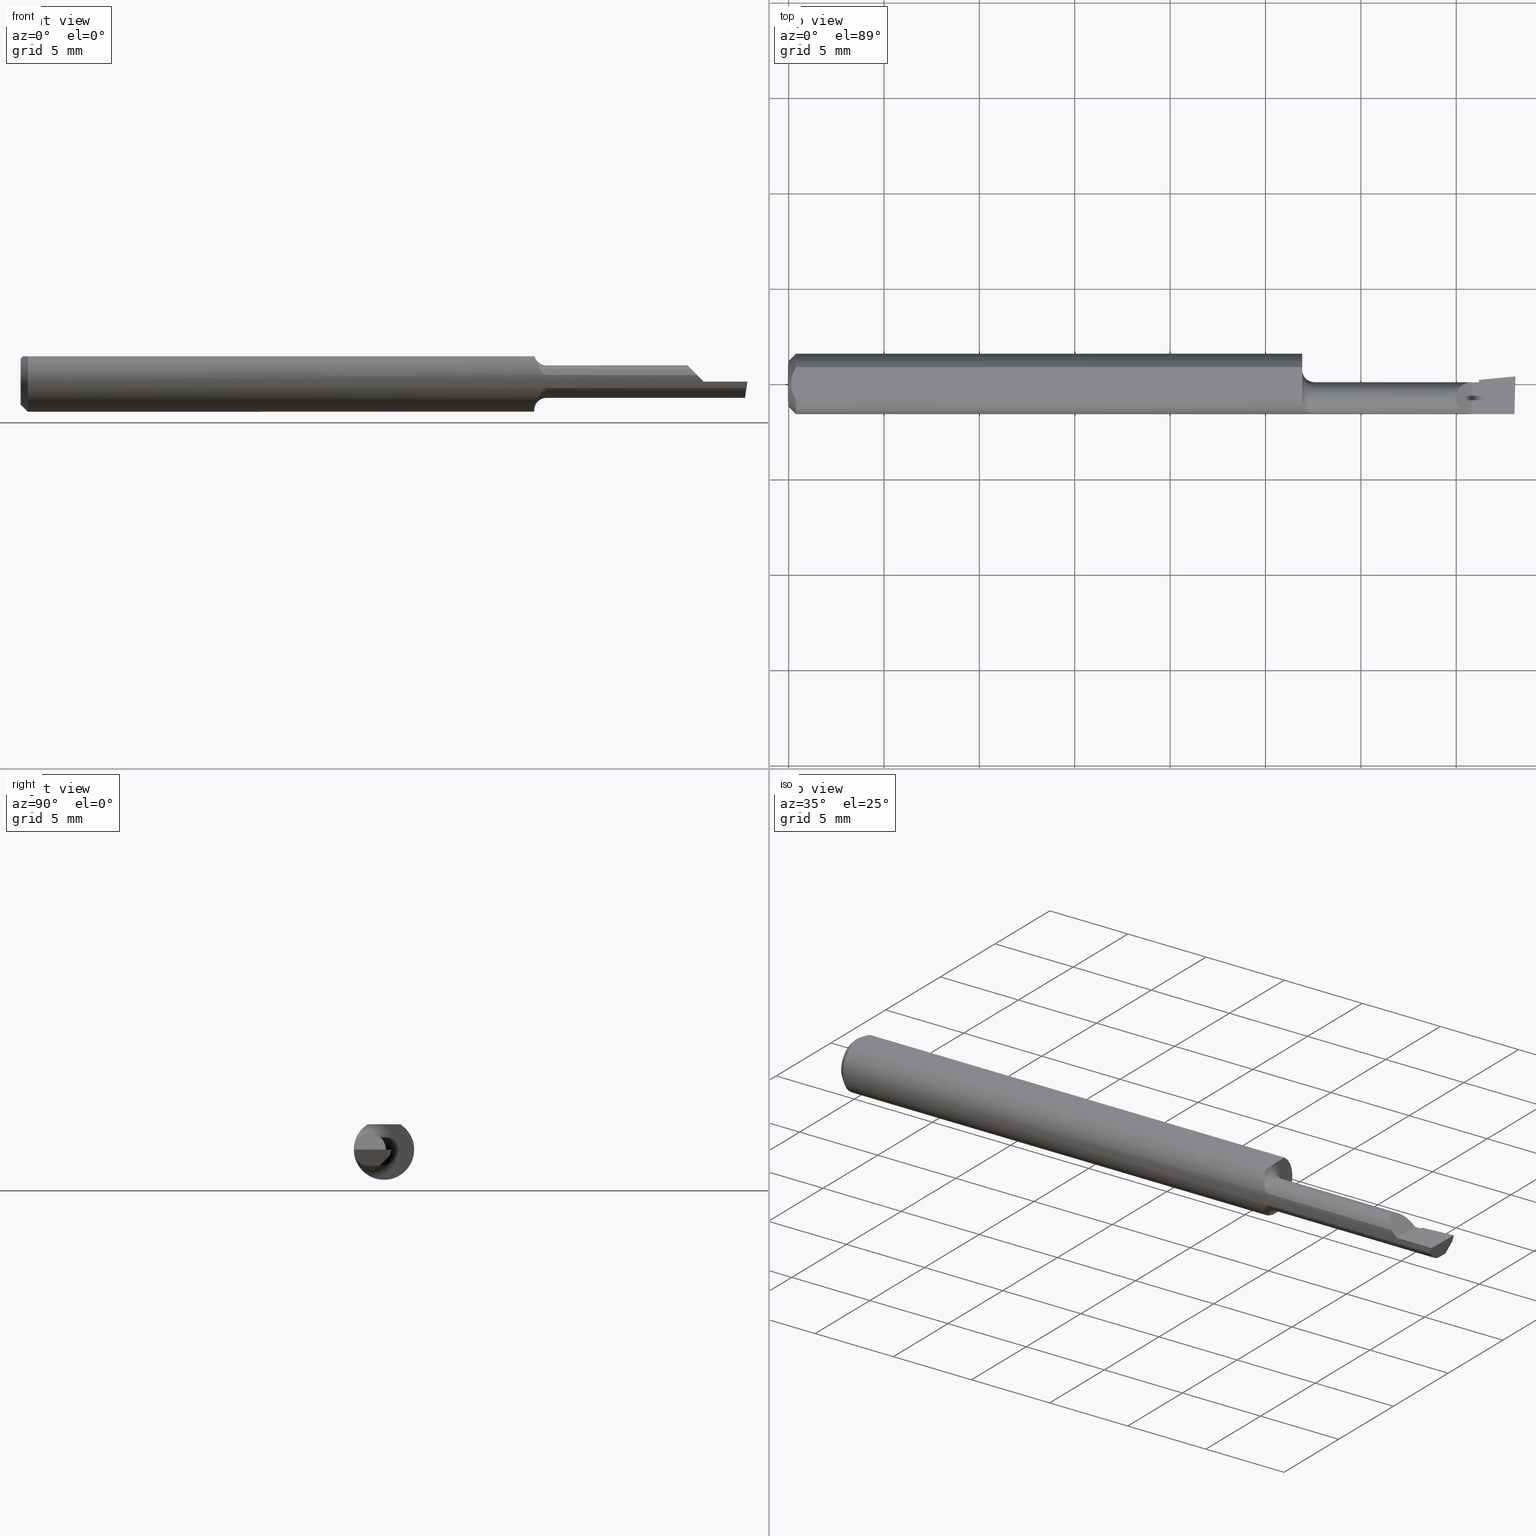
[diagram: canonical four-view strip — front | top / right | iso, engineering-drawing reading convention]
A machine part, canonical four-view strip (front | top / right | iso — engineering-drawing reading convention). The complete STEP part file that produces these views, byte-faithful:
ISO-10303-21;
HEADER;
FILE_DESCRIPTION (( 'STEP AP214' ),
    '1' );
FILE_NAME ('B080400.STEP',
    '2019-07-25T16:58:01',
    ( '' ),
    ( '' ),
    'SwSTEP 2.0',
    'SolidWorks 2018',
    '' );
FILE_SCHEMA (( 'AUTOMOTIVE_DESIGN' ));
ENDSEC;

DATA;
#1 = SURFACE_STYLE_USAGE ( .BOTH. , #260 ) ;
#2 =( CONVERSION_BASED_UNIT ( 'INCH', #304 ) LENGTH_UNIT ( ) NAMED_UNIT ( #510 ) );
#3 = EDGE_CURVE ( 'NONE', #322, #323, #242, .T. ) ;
#4 = ORIENTED_EDGE ( 'NONE', *, *, #451, .T. ) ;
#5 = APPLICATION_CONTEXT ( 'automotive_design' ) ;
#6 = DIRECTION ( 'NONE',  ( 1.000000000000000000, 0.0000000000000000000, 0.0000000000000000000 ) ) ;
#7 = LINE ( 'NONE', #345, #112 ) ;
#8 = CARTESIAN_POINT ( 'NONE',  ( 0.006057557792978140489, -0.01187252718384441616, 0.05234999999999998682 ) ) ;
#9 = ORIENTED_EDGE ( 'NONE', *, *, #198, .T. ) ;
#10 =( NAMED_UNIT ( * ) SI_UNIT ( $, .STERADIAN. ) SOLID_ANGLE_UNIT ( ) );
#11 = CARTESIAN_POINT ( 'NONE',  ( 1.060770118751884317, -0.03386738844373782253, 0.05235000000000000070 ) ) ;
#12 = CARTESIAN_POINT ( 'NONE',  ( 1.500000000000000222, -0.2500000000000000555, 0.0000000000000000000 ) ) ;
#13 = AXIS2_PLACEMENT_3D ( 'NONE', #529, #344, #86 ) ;
#14 = EDGE_LOOP ( 'NONE', ( #207, #69, #507, #281 ) ) ;
#15 = AXIS2_PLACEMENT_3D ( 'NONE', #221, #269, #394 ) ;
#16 = CYLINDRICAL_SURFACE ( 'NONE', #392, 0.03364999999999997854 ) ;
#17 = CARTESIAN_POINT ( 'NONE',  ( 1.062228576699353555, -0.04137438227418509945, 0.04686461655001718934 ) ) ;
#18 = ORIENTED_EDGE ( 'NONE', *, *, #421, .F. ) ;
#19 = ORIENTED_EDGE ( 'NONE', *, *, #198, .F. ) ;
#20 = PLANE ( 'NONE',  #146 ) ;
#21 = EDGE_CURVE ( 'NONE', #333, #439, #7, .T. ) ;
#22 = CARTESIAN_POINT ( 'NONE',  ( 1.496875516891821967, -0.06187149898566946665, -0.008911023878839243254 ) ) ;
#23 = CARTESIAN_POINT ( 'NONE',  ( 0.0000000000000000000, 0.0000000000000000000, 0.0000000000000000000 ) ) ;
#24 = B_SPLINE_CURVE_WITH_KNOTS ( 'NONE', 3,
 ( #500, #356, #321, #95, #406, #11 ),
 .UNSPECIFIED., .F., .F.,
 ( 4, 2, 4 ),
 ( 2.951825381264365662E-05, 0.0004145759864934283755, 0.0007996337191742130266 ),
 .UNSPECIFIED. ) ;
#25 = TOROIDAL_SURFACE ( 'NONE', #154, 0.05864999999999995217, 0.02500000000000000486 ) ;
#26 = VECTOR ( 'NONE', #48, 39.37007874015748854 ) ;
#27 = CARTESIAN_POINT ( 'NONE',  ( 1.425000000000000266, -0.02999999999999999889, -0.03365000000000000629 ) ) ;
#28 = ORIENTED_EDGE ( 'NONE', *, *, #433, .F. ) ;
#29 = CARTESIAN_POINT ( 'NONE',  ( 1.405531640871310994, -0.06235000000000000958, 0.004468359128689231886 ) ) ;
#30 = EDGE_CURVE ( 'NONE', #439, #323, #461, .T. ) ;
#31 = CARTESIAN_POINT ( 'NONE',  ( 1.060000000000000275, 0.03386738844375224156, 0.05235000000000000070 ) ) ;
#32 = ORIENTED_EDGE ( 'NONE', *, *, #401, .F. ) ;
#33 =( BOUNDED_CURVE ( )  B_SPLINE_CURVE ( 3, ( #119, #29, #253, #484 ),
 .UNSPECIFIED., .F., .F. ) 
 B_SPLINE_CURVE_WITH_KNOTS ( ( 4, 4 ),
 ( 4.712388980384689674, 4.926973479604667361 ),
 .UNSPECIFIED. ) 
 CURVE ( )  GEOMETRIC_REPRESENTATION_ITEM ( )  RATIONAL_B_SPLINE_CURVE ( ( 1.000000000000000000, 0.9961664706887894960, 0.9961664706887894960, 1.000000000000000000 ) ) 
 REPRESENTATION_ITEM ( '' )  );
#34 = CARTESIAN_POINT ( 'NONE',  ( 1.060000000000000275, -0.02246166666666676859, -0.05816352835373341662 ) ) ;
#35 = VECTOR ( 'NONE', #580, 39.37007874015748854 ) ;
#36 = CARTESIAN_POINT ( 'NONE',  ( 1.363008094618844535, 0.003649999999999974879, 0.04699190538115510102 ) ) ;
#37 = CARTESIAN_POINT ( 'NONE',  ( 1.496364186706980792, -0.06092000000000002968, -0.01327690099383122685 ) ) ;
#38 = MECHANICAL_DESIGN_GEOMETRIC_PRESENTATION_REPRESENTATION (  '', ( #210 ), #554 ) ;
#39 = CARTESIAN_POINT ( 'NONE',  ( 1.500000000000000222, 0.1123499999999999915, 0.05234999999999998682 ) ) ;
#40 = ORIENTED_EDGE ( 'NONE', *, *, #49, .T. ) ;
#41 = CARTESIAN_POINT ( 'NONE',  ( 1.422734132366857862, -0.006115384616088629516, -0.02372927357351955688 ) ) ;
#43 = CARTESIAN_POINT ( 'NONE',  ( 1.060459195061412618, -0.03294655339399239075, -0.05323881456264101253 ) ) ;
#42 = FACE_OUTER_BOUND ( 'NONE', #343, .T. ) ;
#44 = CARTESIAN_POINT ( 'NONE',  ( 1.396723099006168756, -0.06092000000000002968, 0.01327690099383124073 ) ) ;
#45 = VERTEX_POINT ( 'NONE', #581 ) ;
#46 = DIRECTION ( 'NONE',  ( 0.7071067811865395791, 8.659560562355030233E-17, 0.7071067811865554553 ) ) ;
#47 = APPLICATION_PROTOCOL_DEFINITION ( 'draft international standard', 'automotive_design', 1998, #542 ) ;
#48 = DIRECTION ( 'NONE',  ( 0.9953961983671800740, 0.09584575252021028391, -0.0000000000000000000 ) ) ;
#49 = EDGE_CURVE ( 'NONE', #413, #340, #466, .T. ) ;
#50 = ORIENTED_EDGE ( 'NONE', *, *, #377, .F. ) ;
#51 = ORIENTED_EDGE ( 'NONE', *, *, #337, .F. ) ;
#52 = PRODUCT_DEFINITION_FORMATION_WITH_SPECIFIED_SOURCE ( 'ANY', '', #378, .NOT_KNOWN. ) ;
#53 = AXIS2_PLACEMENT_3D ( 'NONE', #506, #190, #512 ) ;
#54 = VECTOR ( 'NONE', #473, 39.37007874015748143 ) ;
#55 = ORIENTED_EDGE ( 'NONE', *, *, #167, .F. ) ;
#56 = ORIENTED_EDGE ( 'NONE', *, *, #514, .F. ) ;
#57 = DIRECTION ( 'NONE',  ( 0.0000000000000000000, -0.6963153109074925462, -0.7177360153954948085 ) ) ;
#58 = ORIENTED_EDGE ( 'NONE', *, *, #415, .F. ) ;
#59 = CARTESIAN_POINT ( 'NONE',  ( 1.060770118751884317, -0.03386738844373782253, 0.05235000000000000070 ) ) ;
#60 = FACE_OUTER_BOUND ( 'NONE', #301, .T. ) ;
#61 = ORIENTED_EDGE ( 'NONE', *, *, #187, .T. ) ;
#62 = DIRECTION ( 'NONE',  ( 1.000000000000000000, -2.845674993400274571E-18, 0.0000000000000000000 ) ) ;
#63 = ADVANCED_FACE ( 'NONE', ( #72 ), #352, .F. ) ;
#64 = AXIS2_PLACEMENT_3D ( 'NONE', #68, #259, #339 ) ;
#65 = B_SPLINE_CURVE_WITH_KNOTS ( 'NONE', 3,
 ( #59, #559, #17, #326, #328, #153, #516, #468, #156, #556, #471, #239, #291, #244 ),
 .UNSPECIFIED., .F., .F.,
 ( 4, 2, 2, 2, 2, 2, 4 ),
 ( 3.657393739027581265E-07, 0.0003570510026825781660, 0.0007137362659912535167, 0.001070421529299928976, 0.001248764160954266922, 0.001337935476781435679, 0.001427106792608604435 ),
 .UNSPECIFIED. ) ;
#66 = CARTESIAN_POINT ( 'NONE',  ( 1.060770118751884317, -0.03386738844373782253, 0.05235000000000000070 ) ) ;
#67 = MANIFOLD_SOLID_BREP ( 'Extrude7', #419 ) ;
#68 = CARTESIAN_POINT ( 'NONE',  ( 0.0000000000000000000, 0.0000000000000000000, 0.0000000000000000000 ) ) ;
#69 = ORIENTED_EDGE ( 'NONE', *, *, #21, .T. ) ;
#70 = PRODUCT_RELATED_PRODUCT_CATEGORY ( 'part', '', ( #378 ) ) ;
#71 = DIRECTION ( 'NONE',  ( -0.9953961983671800740, -0.09584575252021027003, 1.242092384877204530E-16 ) ) ;
#72 = FACE_OUTER_BOUND ( 'NONE', #509, .T. ) ;
#73 = ORIENTED_EDGE ( 'NONE', *, *, #327, .F. ) ;
#74 = CARTESIAN_POINT ( 'NONE',  ( 0.01500000000000000465, 0.0000000000000000000, 0.0000000000000000000 ) ) ;
#75 = DIRECTION ( 'NONE',  ( 1.981487067771189051E-18, 0.6963153109074925462, 0.7177360153954948085 ) ) ;
#76 = CARTESIAN_POINT ( 'NONE',  ( 1.409999999999999920, -0.2500000000000000555, 1.102182119232617911E-17 ) ) ;
#77 = SHAPE_DEFINITION_REPRESENTATION ( #252, #230 ) ;
#78 = FACE_OUTER_BOUND ( 'NONE', #133, .T. ) ;
#79 = LINE ( 'NONE', #284, #393 ) ;
#80 = PLANE ( 'NONE',  #456 ) ;
#81 = ORIENTED_EDGE ( 'NONE', *, *, #445, .T. ) ;
#82 = UNCERTAINTY_MEASURE_WITH_UNIT (LENGTH_MEASURE( 1.000000000000000082E-05 ), #2, 'distance_accuracy_value', 'NONE');
#83 = DIRECTION ( 'NONE',  ( 0.0000000000000000000, -7.598598113218357399E-17, -1.000000000000000000 ) ) ;
#84 = CARTESIAN_POINT ( 'NONE',  ( 1.494942300338901298, -0.05544825464842374069, -0.02601981188465945019 ) ) ;
#85 = EDGE_CURVE ( 'NONE', #391, #123, #465, .T. ) ;
#86 = DIRECTION ( 'NONE',  ( 0.0000000000000000000, -1.000000000000000000, 0.0000000000000000000 ) ) ;
#87 = VECTOR ( 'NONE', #508, 39.37007874015748143 ) ;
#88 = ORIENTED_EDGE ( 'NONE', *, *, #150, .F. ) ;
#89 =( CONVERSION_BASED_UNIT ( 'INCH', #539 ) LENGTH_UNIT ( ) NAMED_UNIT ( #476 ) );
#90 = VERTEX_POINT ( 'NONE', #172 ) ;
#91 = CARTESIAN_POINT ( 'NONE',  ( 1.422808130611181054, -0.006922796484204020787, -0.02449010367251484854 ) ) ;
#92 = CARTESIAN_POINT ( 'NONE',  ( 1.063806486637389748, -0.04605636197897010342, -0.04237644601823783996 ) ) ;
#93 = SURFACE_SIDE_STYLE ('',( #350 ) ) ;
#94 = EDGE_CURVE ( 'NONE', #541, #306, #191, .T. ) ;
#95 = CARTESIAN_POINT ( 'NONE',  ( 1.060746490741564241, -0.02375524936241533991, 0.05234999999999998682 ) ) ;
#96 = FILL_AREA_STYLE ('',( #544 ) ) ;
#97 = CARTESIAN_POINT ( 'NONE',  ( 1.498507078272894200, 0.01201126422912052530, -0.01137894806700407747 ) ) ;
#98 = DIRECTION ( 'NONE',  ( 0.7071067811865395791, 0.0000000000000000000, -0.7071067811865554553 ) ) ;
#99 = PRESENTATION_STYLE_ASSIGNMENT (( #1 ) ) ;
#100 = ORIENTED_EDGE ( 'NONE', *, *, #204, .F. ) ;
#101 = DIRECTION ( 'NONE',  ( 0.0000000000000000000, 0.0000000000000000000, 1.000000000000000000 ) ) ;
#102 = CARTESIAN_POINT ( 'NONE',  ( 0.0000000000000000000, -0.03386738844375222768, 0.05234999999999997988 ) ) ;
#103 = ORIENTED_EDGE ( 'NONE', *, *, #232, .F. ) ;
#104 = ORIENTED_EDGE ( 'NONE', *, *, #505, .T. ) ;
#105 =( BOUNDED_CURVE ( )  B_SPLINE_CURVE ( 3, ( #292, #22, #517, #376 ),
 .UNSPECIFIED., .F., .T. ) 
 B_SPLINE_CURVE_WITH_KNOTS ( ( 4, 4 ),
 ( 1.146162383294269560, 1.360746882514247469 ),
 .UNSPECIFIED. ) 
 CURVE ( )  GEOMETRIC_REPRESENTATION_ITEM ( )  RATIONAL_B_SPLINE_CURVE ( ( 1.000000000000000000, 0.9961664706887894960, 0.9961664706887894960, 1.000000000000000000 ) ) 
 REPRESENTATION_ITEM ( '' )  );
#106 = ADVANCED_FACE ( 'NONE', ( #122 ), #398, .T. ) ;
#107 = AXIS2_PLACEMENT_3D ( 'NONE', #159, #200, #522 ) ;
#108 = ORIENTED_EDGE ( 'NONE', *, *, #364, .T. ) ;
#109 = CARTESIAN_POINT ( 'NONE',  ( 1.421744639163020185, 0.004121984496277298314, -0.01299999999999999767 ) ) ;
#110 = VECTOR ( 'NONE', #526, 39.37007874015748143 ) ;
#111 = DIRECTION ( 'NONE',  ( 0.0000000000000000000, 1.000000000000000000, 0.0000000000000000000 ) ) ;
#112 = VECTOR ( 'NONE', #218, 39.37007874015748854 ) ;
#113 = ORIENTED_EDGE ( 'NONE', *, *, #295, .T. ) ;
#114 = EDGE_CURVE ( 'NONE', #463, #413, #118, .T. ) ;
#115 = B_SPLINE_CURVE_WITH_KNOTS ( 'NONE', 3,
 ( #495, #183, #543, #138, #362, #407 ),
 .UNSPECIFIED., .F., .F.,
 ( 4, 2, 4 ),
 ( 0.003037199019464981685, 0.003488061124369676216, 0.003938923229274370746 ),
 .UNSPECIFIED. ) ;
#116 = EDGE_LOOP ( 'NONE', ( #577, #189 ) ) ;
#117 = CONICAL_SURFACE ( 'NONE', #372, 0.06235000000000000264, 0.7853981633974594923 ) ;
#118 = CIRCLE ( 'NONE', #127, 0.06235000000000000264 ) ;
#119 = CARTESIAN_POINT ( 'NONE',  ( 1.409999999999999920, -0.06235000000000005121, 1.102182119232617911E-17 ) ) ;
#120 = ORIENTED_EDGE ( 'NONE', *, *, #349, .T. ) ;
#121 = EDGE_CURVE ( 'NONE', #329, #541, #335, .T. ) ;
#122 = FACE_OUTER_BOUND ( 'NONE', #324, .T. ) ;
#123 = VERTEX_POINT ( 'NONE', #34 ) ;
#124 =( LENGTH_UNIT ( ) NAMED_UNIT ( * ) SI_UNIT ( $, .METRE. ) );
#125 = ORIENTED_EDGE ( 'NONE', *, *, #514, .T. ) ;
#126 = CARTESIAN_POINT ( 'NONE',  ( 1.060000000000000275, -0.003555718954753289696, 0.05235000000000000070 ) ) ;
#127 = AXIS2_PLACEMENT_3D ( 'NONE', #142, #139, #101 ) ;
#128 = CARTESIAN_POINT ( 'NONE',  ( 1.425000000000000266, 0.01742832138518450244, 0.0000000000000000000 ) ) ;
#129 = CARTESIAN_POINT ( 'NONE',  ( 1.423453955186838593, -0.005345927311154015198, -0.02292882422404280210 ) ) ;
#130 = PRODUCT_CONTEXT ( 'NONE', #542, 'mechanical' ) ;
#131 =( NAMED_UNIT ( * ) SI_UNIT ( $, .STERADIAN. ) SOLID_ANGLE_UNIT ( ) );
#132 = DIRECTION ( 'NONE',  ( 0.0000000000000000000, -0.6963153109074925462, -0.7177360153954948085 ) ) ;
#133 = EDGE_LOOP ( 'NONE', ( #214, #432, #56, #558, #504, #108, #238, #288 ) ) ;
#134 = CARTESIAN_POINT ( 'NONE',  ( 1.059999999999999831, -0.02789725500421540855, -0.05606440581369923071 ) ) ;
#135 = FACE_OUTER_BOUND ( 'NONE', #243, .T. ) ;
#136 = VERTEX_POINT ( 'NONE', #502 ) ;
#137 = ORIENTED_EDGE ( 'NONE', *, *, #553, .F. ) ;
#138 = CARTESIAN_POINT ( 'NONE',  ( 0.009669996313769784607, 0.02323004575534281385, 0.05234999999999998682 ) ) ;
#139 = DIRECTION ( 'NONE',  ( -1.000000000000000000, -0.0000000000000000000, -0.0000000000000000000 ) ) ;
#140 = VERTEX_POINT ( 'NONE', #179 ) ;
#142 = CARTESIAN_POINT ( 'NONE',  ( 0.01500000000000000465, 0.0000000000000000000, 0.0000000000000000000 ) ) ;
#141 = CIRCLE ( 'NONE', #296, 0.04734999999999965625 ) ;
#143 = EDGE_CURVE ( 'NONE', #273, #333, #571, .T. ) ;
#144 = DIRECTION ( 'NONE',  ( -1.000000000000000000, 0.0000000000000000000, 1.224646799147351728E-16 ) ) ;
#145 = ADVANCED_FACE ( 'NONE', ( #562 ), #233, .F. ) ;
#146 = AXIS2_PLACEMENT_3D ( 'NONE', #109, #192, #57 ) ;
#147 = EDGE_LOOP ( 'NONE', ( #28, #285, #546, #271, #202, #58 ) ) ;
#148 = UNCERTAINTY_MEASURE_WITH_UNIT (LENGTH_MEASURE( 1.000000000000000082E-05 ), #222, 'distance_accuracy_value', 'NONE');
#149 = LINE ( 'NONE', #315, #26 ) ;
#150 = EDGE_CURVE ( 'NONE', #340, #312, #481, .T. ) ;
#151 = ORIENTED_EDGE ( 'NONE', *, *, #570, .T. ) ;
#152 = ORIENTED_EDGE ( 'NONE', *, *, #415, .T. ) ;
#153 = CARTESIAN_POINT ( 'NONE',  ( 1.069932821425532365, -0.05508260153816094823, 0.02952874505345454842 ) ) ;
#154 = AXIS2_PLACEMENT_3D ( 'NONE', #212, #574, #538 ) ;
#155 = CARTESIAN_POINT ( 'NONE',  ( 1.425000000000000266, -0.01559826430798809220, -0.03365000000000000629 ) ) ;
#156 = CARTESIAN_POINT ( 'NONE',  ( 1.077368540304127764, -0.05962881332384153271, 0.01830066387367074859 ) ) ;
#157 = ORIENTED_EDGE ( 'NONE', *, *, #94, .F. ) ;
#158 = CARTESIAN_POINT ( 'NONE',  ( 1.425000000000000266, -0.2500000000000000555, 9.184850993605122553E-18 ) ) ;
#159 = CARTESIAN_POINT ( 'NONE',  ( 1.421363700328992286, 0.008078185550903239573, 0.0000000000000000000 ) ) ;
#160 = EDGE_CURVE ( 'NONE', #511, #312, #79, .T. ) ;
#161 = ORIENTED_EDGE ( 'NONE', *, *, #178, .T. ) ;
#162 = DIRECTION ( 'NONE',  ( 0.0000000000000000000, 1.000000000000000000, 2.134256245050205331E-17 ) ) ;
#163 = LINE ( 'NONE', #102, #54 ) ;
#164 = EDGE_LOOP ( 'NONE', ( #454, #223, #552, #181, #528, #103, #9, #217, #351, #278, #100, #368 ) ) ;
#165 = CARTESIAN_POINT ( 'NONE',  ( 1.425000000000000266, 0.01723212120761677055, 0.0001903446179552509407 ) ) ;
#166 = ORIENTED_EDGE ( 'NONE', *, *, #85, .T. ) ;
#167 = EDGE_CURVE ( 'NONE', #186, #140, #149, .T. ) ;
#168 = ORIENTED_EDGE ( 'NONE', *, *, #358, .F. ) ;
#169 = CARTESIAN_POINT ( 'NONE',  ( 2.249639673992780117E-32, -0.06234999999999999570, 1.836970198721026976E-16 ) ) ;
#170 = LINE ( 'NONE', #245, #459 ) ;
#171 = ORIENTED_EDGE ( 'NONE', *, *, #204, .T. ) ;
#172 = CARTESIAN_POINT ( 'NONE',  ( 1.422808130611181054, -0.006922796484204020787, -0.02449010367251484854 ) ) ;
#173 = CARTESIAN_POINT ( 'NONE',  ( 1.494671495890090407, -0.02999999999999999889, -0.03365000000000000629 ) ) ;
#174 = VERTEX_POINT ( 'NONE', #361 ) ;
#175 = CARTESIAN_POINT ( 'NONE',  ( 1.078839404641495303, -0.06006884725234332839, -0.01674793665629174116 ) ) ;
#176 = EDGE_LOOP ( 'NONE', ( #157, #51, #152 ) ) ;
#177 = DIRECTION ( 'NONE',  ( 0.0000000000000000000, 0.0000000000000000000, 1.000000000000000000 ) ) ;
#178 = EDGE_CURVE ( 'NONE', #45, #140, #234, .T. ) ;
#179 = CARTESIAN_POINT ( 'NONE',  ( 1.498294395726379236, 0.01149288769551535735, -0.01300000000000000461 ) ) ;
#180 = DIRECTION ( 'NONE',  ( -2.845674993400274571E-18, -1.000000000000000000, 7.598598113218357399E-17 ) ) ;
#181 = ORIENTED_EDGE ( 'NONE', *, *, #337, .T. ) ;
#182 = CARTESIAN_POINT ( 'NONE',  ( 0.009678036133109307534, -0.02325481837211496039, 0.05235000000000000070 ) ) ;
#183 = CARTESIAN_POINT ( 'NONE',  ( 0.004999999999999268051, 0.005945714695019511074, 0.05235000000000000070 ) ) ;
#184 = EDGE_LOOP ( 'NONE', ( #525, #268, #416, #485 ) ) ;
#185 = CARTESIAN_POINT ( 'NONE',  ( 0.004999999999989931769, 7.898418181085889318E-16, 0.05235000000000000070 ) ) ;
#186 = VERTEX_POINT ( 'NONE', #231 ) ;
#187 = EDGE_CURVE ( 'NONE', #448, #254, #24, .T. ) ;
#188 = VECTOR ( 'NONE', #408, 39.37007874015748143 ) ;
#189 = ORIENTED_EDGE ( 'NONE', *, *, #505, .F. ) ;
#190 = DIRECTION ( 'NONE',  ( -1.214679925209547374E-34, -2.134256245050205023E-17, 1.000000000000000000 ) ) ;
#191 =( BOUNDED_CURVE ( )  B_SPLINE_CURVE ( 3, ( #579, #308, #36, #264 ),
 .UNSPECIFIED., .F., .F. ) 
 B_SPLINE_CURVE_WITH_KNOTS ( ( 4, 4 ),
 ( 5.117976542370898940, 7.853981633974482790 ),
 .UNSPECIFIED. ) 
 CURVE ( )  GEOMETRIC_REPRESENTATION_ITEM ( )  RATIONAL_B_SPLINE_CURVE ( ( 1.000000000000000000, 0.4676044288551156614, 0.4676044288551156614, 1.000000000000000000 ) ) 
 REPRESENTATION_ITEM ( '' )  );
#192 = DIRECTION ( 'NONE',  ( 0.06894566448119621160, -0.7160281025913034503, 0.6946583704589934793 ) ) ;
#193 = DIRECTION ( 'NONE',  ( 1.000000000000000000, 0.0000000000000000000, 0.0000000000000000000 ) ) ;
#194 = VECTOR ( 'NONE', #491, 39.37007874015748143 ) ;
#195 = ADVANCED_FACE ( 'NONE', ( #280 ), #410, .F. ) ;
#196 = EDGE_LOOP ( 'NONE', ( #567, #396, #151, #40, #499 ) ) ;
#197 = DIMENSIONAL_EXPONENTS ( 1.000000000000000000, 0.0000000000000000000, 0.0000000000000000000, 0.0000000000000000000, 0.0000000000000000000, 0.0000000000000000000, 0.0000000000000000000 ) ;
#198 = EDGE_CURVE ( 'NONE', #254, #340, #163, .T. ) ;
#199 = PLANE ( 'NONE',  #220 ) ;
#200 = DIRECTION ( 'NONE',  ( 0.09165774897393341725, -0.9519021185660617723, 0.2923717047227292753 ) ) ;
#201 = VERTEX_POINT ( 'NONE', #283 ) ;
#202 = ORIENTED_EDGE ( 'NONE', *, *, #364, .F. ) ;
#203 = CARTESIAN_POINT ( 'NONE',  ( 0.01500000000000000465, 0.0000000000000000000, -0.06235000000000000264 ) ) ;
#204 = EDGE_CURVE ( 'NONE', #123, #404, #438, .T. ) ;
#205 = B_SPLINE_CURVE_WITH_KNOTS ( 'NONE', 3,
 ( #399, #311, #41, #353 ),
 .UNSPECIFIED., .F., .F.,
 ( 4, 4 ),
 ( 0.0000000000000000000, 1.000000000000000000 ),
 .UNSPECIFIED. ) ;
#206 = CIRCLE ( 'NONE', #325, 0.05864999999999995217 ) ;
#207 = ORIENTED_EDGE ( 'NONE', *, *, #143, .T. ) ;
#208 = CARTESIAN_POINT ( 'NONE',  ( 0.01500000000000000465, 0.03386738844375223462, 0.05234999999999997988 ) ) ;
#209 = ORIENTED_EDGE ( 'NONE', *, *, #114, .T. ) ;
#210 = STYLED_ITEM ( 'NONE', ( #545 ), #230 ) ;
#211 = DIRECTION ( 'NONE',  ( 0.0000000000000000000, 0.0000000000000000000, 1.000000000000000000 ) ) ;
#212 = CARTESIAN_POINT ( 'NONE',  ( 1.085000000000000187, -0.02999999999999999195, 0.0000000000000000000 ) ) ;
#213 = AXIS2_PLACEMENT_3D ( 'NONE', #23, #371, #248 ) ;
#214 = ORIENTED_EDGE ( 'NONE', *, *, #445, .F. ) ;
#215 = CARTESIAN_POINT ( 'NONE',  ( 1.076050480108695639, -0.05911543623058085339, -0.01994584841871081468 ) ) ;
#216 = FACE_OUTER_BOUND ( 'NONE', #116, .T. ) ;
#217 = ORIENTED_EDGE ( 'NONE', *, *, #49, .F. ) ;
#218 = DIRECTION ( 'NONE',  ( -0.02617694830794567787, -0.9996573249755552615, -2.144436937150365041E-17 ) ) ;
#219 = CARTESIAN_POINT ( 'NONE',  ( 1.494308349198229635, -0.04386801266094339513, -0.03364999999999997160 ) ) ;
#220 = AXIS2_PLACEMENT_3D ( 'NONE', #341, #336, #250 ) ;
#221 = CARTESIAN_POINT ( 'NONE',  ( 0.01500000000000000465, 0.0000000000000000000, 0.0000000000000000000 ) ) ;
#222 =( CONVERSION_BASED_UNIT ( 'INCH', #310 ) LENGTH_UNIT ( ) NAMED_UNIT ( #197 ) );
#223 = ORIENTED_EDGE ( 'NONE', *, *, #286, .T. ) ;
#224 =( NAMED_UNIT ( * ) SI_UNIT ( $, .STERADIAN. ) SOLID_ANGLE_UNIT ( ) );
#225 = MECHANICAL_DESIGN_GEOMETRIC_PRESENTATION_REPRESENTATION (  '', ( #492 ), #560 ) ;
#226 = LINE ( 'NONE', #565, #110 ) ;
#227 = CARTESIAN_POINT ( 'NONE',  ( 1.409999999999999920, -0.06235000000000005121, 1.102182119232617911E-17 ) ) ;
#228 = SURFACE_STYLE_FILL_AREA ( #480 ) ;
#229 = ORIENTED_EDGE ( 'NONE', *, *, #3, .F. ) ;
#230 = ADVANCED_BREP_SHAPE_REPRESENTATION ( 'B080400', ( #67, #478 ), #338 ) ;
#231 = CARTESIAN_POINT ( 'NONE',  ( 1.425000000000000266, 0.004435440092809596509, -0.01299999999999999593 ) ) ;
#232 = EDGE_CURVE ( 'NONE', #254, #329, #65, .T. ) ;
#233 = PLANE ( 'NONE',  #549 ) ;
#234 = LINE ( 'NONE', #97, #188 ) ;
#235 = LINE ( 'NONE', #274, #431 ) ;
#236 = VECTOR ( 'NONE', #547, 39.37007874015748854 ) ;
#237 = ADVANCED_FACE ( 'NONE', ( #446 ), #20, .F. ) ;
#238 = ORIENTED_EDGE ( 'NONE', *, *, #3, .T. ) ;
#239 = CARTESIAN_POINT ( 'NONE',  ( 1.082669914596958050, -0.06082078945086089039, 0.01373977049058535890 ) ) ;
#240 = ADVANCED_FACE ( 'NONE', ( #425 ), #430, .T. ) ;
#241 = DIRECTION ( 'NONE',  ( -0.1053106618242659331, -0.6976485211320150315, -0.7086580314005108683 ) ) ;
#242 = CIRCLE ( 'NONE', #300, 0.03364999999999999936 ) ;
#243 = EDGE_LOOP ( 'NONE', ( #81, #551, #73, #564, #382, #298 ) ) ;
#244 = CARTESIAN_POINT ( 'NONE',  ( 1.085000000000000187, -0.06092000000000011989, 0.01327690099383098572 ) ) ;
#245 = CARTESIAN_POINT ( 'NONE',  ( 1.255000000000000115, -0.06092000000000002968, -0.01327690099383122685 ) ) ;
#246 = ADVANCED_FACE ( 'NONE', ( #42 ), #330, .F. ) ;
#247 = ORIENTED_EDGE ( 'NONE', *, *, #389, .F. ) ;
#248 = DIRECTION ( 'NONE',  ( 0.0000000000000000000, 0.0000000000000000000, -1.000000000000000000 ) ) ;
#249 = COLOUR_RGB ( '',0.7529411764705882248, 0.7529411764705882248, 0.7529411764705882248 ) ;
#250 = DIRECTION ( 'NONE',  ( 0.1219104985253313955, 0.0000000000000000000, 0.9925410975618615961 ) ) ;
#251 = CARTESIAN_POINT ( 'NONE',  ( 0.0000000000000000000, 0.0000000000000000000, 0.0000000000000000000 ) ) ;
#252 = PRODUCT_DEFINITION_SHAPE ( 'NONE', 'NONE',  #365 ) ;
#253 = CARTESIAN_POINT ( 'NONE',  ( 1.401088976121160901, -0.06187149898566946665, 0.008911023878839208559 ) ) ;
#254 = VERTEX_POINT ( 'NONE', #66 ) ;
#255 = FACE_OUTER_BOUND ( 'NONE', #196, .T. ) ;
#256 = COLOUR_RGB ( '',0.7529411764705882248, 0.7529411764705882248, 0.7529411764705882248 ) ;
#257 = VERTEX_POINT ( 'NONE', #370 ) ;
#258 = EDGE_LOOP ( 'NONE', ( #532, #104 ) ) ;
#259 = DIRECTION ( 'NONE',  ( -1.000000000000000000, -0.0000000000000000000, -0.0000000000000000000 ) ) ;
#260 = SURFACE_SIDE_STYLE ('',( #228 ) ) ;
#261 = CARTESIAN_POINT ( 'NONE',  ( 0.0000000000000000000, 6.717187693324806899E-18, 0.04734999999999965625 ) ) ;
#262 = CARTESIAN_POINT ( 'NONE',  ( 0.0000000000000000000, 0.0000000000000000000, 0.0000000000000000000 ) ) ;
#263 = LINE ( 'NONE', #165, #578 ) ;
#264 = CARTESIAN_POINT ( 'NONE',  ( 1.409999999999999920, 0.003649999999999939317, 1.102182119232617911E-17 ) ) ;
#265 = EDGE_CURVE ( 'NONE', #136, #391, #170, .T. ) ;
#266 =( NAMED_UNIT ( * ) PLANE_ANGLE_UNIT ( ) SI_UNIT ( $, .RADIAN. ) );
#267 = DIRECTION ( 'NONE',  ( -2.845674993400274571E-18, -1.000000000000000000, 0.0000000000000000000 ) ) ;
#268 = ORIENTED_EDGE ( 'NONE', *, *, #327, .T. ) ;
#269 = DIRECTION ( 'NONE',  ( -1.000000000000000000, -0.0000000000000000000, -0.0000000000000000000 ) ) ;
#270 =( LENGTH_UNIT ( ) NAMED_UNIT ( * ) SI_UNIT ( $, .METRE. ) );
#271 = ORIENTED_EDGE ( 'NONE', *, *, #295, .F. ) ;
#272 = CARTESIAN_POINT ( 'NONE',  ( 1.500000000000000222, -0.02999999999999999889, -0.03365000000000000629 ) ) ;
#273 = VERTEX_POINT ( 'NONE', #155 ) ;
#274 = CARTESIAN_POINT ( 'NONE',  ( 1.060000000000000275, 0.1123499999999999915, 0.05234999999999998682 ) ) ;
#275 = CARTESIAN_POINT ( 'NONE',  ( 0.01216137397042175820, -0.02864146636719541034, 0.05235000000000000070 ) ) ;
#276 =( NAMED_UNIT ( * ) PLANE_ANGLE_UNIT ( ) SI_UNIT ( $, .RADIAN. ) );
#277 = DIRECTION ( 'NONE',  ( 1.000000000000000000, -2.845674993400274571E-18, 0.0000000000000000000 ) ) ;
#278 = ORIENTED_EDGE ( 'NONE', *, *, #421, .T. ) ;
#279 = CARTESIAN_POINT ( 'NONE',  ( 1.255000000000000115, -0.06092000000000002968, 0.01327690099383122685 ) ) ;
#280 = FACE_OUTER_BOUND ( 'NONE', #14, .T. ) ;
#281 = ORIENTED_EDGE ( 'NONE', *, *, #358, .T. ) ;
#282 = AXIS2_PLACEMENT_3D ( 'NONE', #520, #332, #426 ) ;
#283 = CARTESIAN_POINT ( 'NONE',  ( 0.0000000000000000000, 0.0000000000000000000, -0.04734999999999965625 ) ) ;
#284 = CARTESIAN_POINT ( 'NONE',  ( 0.01500000000000000465, 7.635672792683746671E-18, 0.06235000000000000264 ) ) ;
#285 = ORIENTED_EDGE ( 'NONE', *, *, #477, .T. ) ;
#286 = EDGE_CURVE ( 'NONE', #136, #174, #105, .T. ) ;
#287 = ADVANCED_FACE ( 'NONE', ( #60 ), #374, .T. ) ;
#288 = ORIENTED_EDGE ( 'NONE', *, *, #30, .F. ) ;
#289 = ORIENTED_EDGE ( 'NONE', *, *, #536, .F. ) ;
#290 = CARTESIAN_POINT ( 'NONE',  ( 1.425000000000000266, -0.02999999999999999889, -0.03365000000000000629 ) ) ;
#291 = CARTESIAN_POINT ( 'NONE',  ( 1.083800894846882246, -0.06092000000060116688, 0.01327690099107451532 ) ) ;
#292 = CARTESIAN_POINT ( 'NONE',  ( 1.496364186706980792, -0.06092000000000002968, -0.01327690099383122685 ) ) ;
#293 = DIRECTION ( 'NONE',  ( -1.000000000000000000, 2.845674993400274571E-18, -0.0000000000000000000 ) ) ;
#294 =( BOUNDED_CURVE ( )  B_SPLINE_CURVE ( 3, ( #395, #129, #493, #91 ),
 .UNSPECIFIED., .F., .F. ) 
 B_SPLINE_CURVE_WITH_KNOTS ( ( 4, 4 ),
 ( 3.087527693676584750, 3.186434404596884651 ),
 .UNSPECIFIED. ) 
 CURVE ( )  GEOMETRIC_REPRESENTATION_ITEM ( )  RATIONAL_B_SPLINE_CURVE ( ( 1.000000000000000000, 0.9991849546734631327, 0.9991849546734631327, 1.000000000000000000 ) ) 
 REPRESENTATION_ITEM ( '' )  );
#295 = EDGE_CURVE ( 'NONE', #322, #483, #402, .T. ) ;
#296 = AXIS2_PLACEMENT_3D ( 'NONE', #262, #535, #211 ) ;
#297 = CARTESIAN_POINT ( 'NONE',  ( 1.085000000000000187, -0.06092000000000011989, 0.01327690099383098572 ) ) ;
#298 = ORIENTED_EDGE ( 'NONE', *, *, #286, .F. ) ;
#299 = CARTESIAN_POINT ( 'NONE',  ( 9.575696352794166315E-20, 0.003649999999999977481, 1.836970198721026976E-16 ) ) ;
#300 = AXIS2_PLACEMENT_3D ( 'NONE', #537, #490, #540 ) ;
#301 = EDGE_LOOP ( 'NONE', ( #171, #387, #524 ) ) ;
#302 = CARTESIAN_POINT ( 'NONE',  ( 1.085000000000000187, -0.06092000000000008519, -0.01327690099383104991 ) ) ;
#303 = CARTESIAN_POINT ( 'NONE',  ( 1.421744639163020185, 0.004121984496277298314, -0.01299999999999999767 ) ) ;
#304 = LENGTH_MEASURE_WITH_UNIT ( LENGTH_MEASURE( 0.02539999999999999897 ), #270 );
#305 = UNCERTAINTY_MEASURE_WITH_UNIT (LENGTH_MEASURE( 1.000000000000000082E-05 ), #89, 'distance_accuracy_value', 'NONE');
#306 = VERTEX_POINT ( 'NONE', #474 ) ;
#307 = PRODUCT_DEFINITION_CONTEXT ( 'detailed design', #5, 'design' ) ;
#308 = CARTESIAN_POINT ( 'NONE',  ( 1.353543612694569021, -0.04237893387051779037, 0.05645638730543054568 ) ) ;
#309 = CARTESIAN_POINT ( 'NONE',  ( 1.494671495890090407, -0.02999999999999999889, -0.03365000000000000629 ) ) ;
#310 = LENGTH_MEASURE_WITH_UNIT ( LENGTH_MEASURE( 0.02539999999999999897 ), #498 );
#311 = CARTESIAN_POINT ( 'NONE',  ( 1.422660134122533337, -0.005345630279323702709, -0.02292848294241266877 ) ) ;
#312 = VERTEX_POINT ( 'NONE', #513 ) ;
#313 = CARTESIAN_POINT ( 'NONE',  ( 1.083515031386486527, -0.06092000000000005050, -0.01327690099383105685 ) ) ;
#314 = DIRECTION ( 'NONE',  ( 8.355118786175290872E-19, 0.2936076258024050145, 0.9559260233253800143 ) ) ;
#315 = CARTESIAN_POINT ( 'NONE',  ( 1.421744639163020185, 0.004121984496277298314, -0.01299999999999999767 ) ) ;
#316 = CARTESIAN_POINT ( 'NONE',  ( 0.0000000000000000000, 0.0000000000000000000, 0.0000000000000000000 ) ) ;
#317 = ORIENTED_EDGE ( 'NONE', *, *, #553, .T. ) ;
#318 = AXIS2_PLACEMENT_3D ( 'NONE', #420, #193, #424 ) ;
#319 = CARTESIAN_POINT ( 'NONE',  ( 0.01500000000000185213, -0.03386738844380016850, 0.05235000000000000070 ) ) ;
#320 =( BOUNDED_CURVE ( )  B_SPLINE_CURVE ( 3, ( #37, #84, #219, #173 ),
 .UNSPECIFIED., .F., .T. ) 
 B_SPLINE_CURVE_WITH_KNOTS ( ( 4, 4 ),
 ( 5.328025986651549140, 6.493234751460234655 ),
 .UNSPECIFIED. ) 
 CURVE ( )  GEOMETRIC_REPRESENTATION_ITEM ( )  RATIONAL_B_SPLINE_CURVE ( ( 1.000000000000000000, 0.8900217005663144665, 0.8900217005663144665, 1.000000000000000000 ) ) 
 REPRESENTATION_ITEM ( '' )  );
#321 = CARTESIAN_POINT ( 'NONE',  ( 1.060303160474311390, -0.01365768250280466507, 0.05235000000000000070 ) ) ;
#322 = VERTEX_POINT ( 'NONE', #555 ) ;
#323 = VERTEX_POINT ( 'NONE', #290 ) ;
#324 = EDGE_LOOP ( 'NONE', ( #247, #168, #229, #113, #137 ) ) ;
#325 = AXIS2_PLACEMENT_3D ( 'NONE', #381, #342, #434 ) ;
#326 = CARTESIAN_POINT ( 'NONE',  ( 1.064663954570610249, -0.04772651244230442791, 0.04037711979630428938 ) ) ;
#327 = EDGE_CURVE ( 'NONE', #140, #333, #412, .T. ) ;
#328 = CARTESIAN_POINT ( 'NONE',  ( 1.066221614559560882, -0.05050373301684462496, 0.03681593035639608991 ) ) ;
#329 = VERTEX_POINT ( 'NONE', #297 ) ;
#330 = PLANE ( 'NONE',  #213 ) ;
#331 = ADVANCED_FACE ( 'NONE', ( #531 ), #503, .T. ) ;
#332 = DIRECTION ( 'NONE',  ( 1.000000000000000000, -2.845674993400274571E-18, 0.0000000000000000000 ) ) ;
#333 = VERTEX_POINT ( 'NONE', #479 ) ;
#334 = AXIS2_PLACEMENT_3D ( 'NONE', #39, #83, #534 ) ;
#335 = LINE ( 'NONE', #279, #563 ) ;
#336 = DIRECTION ( 'NONE',  ( -0.9922060308645400672, 0.02598182930476513816, 0.1218693434051957708 ) ) ;
#337 = EDGE_CURVE ( 'NONE', #572, #541, #33, .T. ) ;
#338 =( GEOMETRIC_REPRESENTATION_CONTEXT ( 3 ) GLOBAL_UNCERTAINTY_ASSIGNED_CONTEXT ( ( #148 ) ) GLOBAL_UNIT_ASSIGNED_CONTEXT ( ( #222, #455, #224 ) ) REPRESENTATION_CONTEXT ( 'NONE', 'WORKASPACE' ) );
#339 = DIRECTION ( 'NONE',  ( 0.0000000000000000000, 0.0000000000000000000, 1.000000000000000000 ) ) ;
#340 = VERTEX_POINT ( 'NONE', #388 ) ;
#341 = CARTESIAN_POINT ( 'NONE',  ( 1.492670969023479621, -0.06014768907414845545, -0.04351009013361928357 ) ) ;
#342 = DIRECTION ( 'NONE',  ( -1.000000000000000000, 2.845674993400274571E-18, -0.0000000000000000000 ) ) ;
#343 = EDGE_LOOP ( 'NONE', ( #4, #120 ) ) ;
#344 = DIRECTION ( 'NONE',  ( -1.000000000000000000, 2.845674993400274571E-18, -0.0000000000000000000 ) ) ;
#345 = CARTESIAN_POINT ( 'NONE',  ( 1.494675147154936878, -0.02986056382103132595, -0.03365000000000000629 ) ) ;
#346 = CARTESIAN_POINT ( 'NONE',  ( 1.425000000000000266, 0.008428321385185622017, 1.835460370743176819E-16 ) ) ;
#347 = CARTESIAN_POINT ( 'NONE',  ( 0.0000000000000000000, -0.02999999999999999542, 0.0000000000000000000 ) ) ;
#348 = FACE_OUTER_BOUND ( 'NONE', #366, .T. ) ;
#349 = EDGE_CURVE ( 'NONE', #511, #201, #384, .T. ) ;
#350 = SURFACE_STYLE_FILL_AREA ( #96 ) ;
#351 = ORIENTED_EDGE ( 'NONE', *, *, #114, .F. ) ;
#352 = PLANE ( 'NONE',  #334 ) ;
#353 = CARTESIAN_POINT ( 'NONE',  ( 1.422808130611181054, -0.006922796484204020787, -0.02449010367251484854 ) ) ;
#354 = CARTESIAN_POINT ( 'NONE',  ( 1.074448669179930871, -0.05829317251375062264, -0.02226264029831841532 ) ) ;
#356 = CARTESIAN_POINT ( 'NONE',  ( 1.060000000000000275, -0.008611455327202423640, 0.05235000000000000070 ) ) ;
#355 = VECTOR ( 'NONE', #71, 39.37007874015748854 ) ;
#357 = CARTESIAN_POINT ( 'NONE',  ( 0.01500000000000000465, 0.0000000000000000000, -0.06235000000000000264 ) ) ;
#358 = EDGE_CURVE ( 'NONE', #323, #273, #375, .T. ) ;
#359 = ORIENTED_EDGE ( 'NONE', *, *, #570, .F. ) ;
#360 = ORIENTED_EDGE ( 'NONE', *, *, #187, .F. ) ;
#361 = CARTESIAN_POINT ( 'NONE',  ( 1.497957498117606479, -0.06235000000000005121, 1.791754701920804801E-19 ) ) ;
#362 = CARTESIAN_POINT ( 'NONE',  ( 0.01218518006020415795, 0.02868529347538067639, 0.05235000000000000070 ) ) ;
#363 = CIRCLE ( 'NONE', #13, 0.03364999999999995772 ) ;
#364 = EDGE_CURVE ( 'NONE', #306, #322, #550, .T. ) ;
#365 = PRODUCT_DEFINITION ( 'UNKNOWN', '', #52, #307 ) ;
#366 = EDGE_LOOP ( 'NONE', ( #50, #161, #55, #317 ) ) ;
#367 = ADVANCED_FACE ( 'NONE', ( #255 ), #117, .T. ) ;
#368 = ORIENTED_EDGE ( 'NONE', *, *, #85, .F. ) ;
#369 = ADVANCED_FACE ( 'NONE', ( #348 ), #429, .F. ) ;
#370 = CARTESIAN_POINT ( 'NONE',  ( 1.422586135878206814, -0.004617293032567721701, -0.02209164292227844967 ) ) ;
#371 = DIRECTION ( 'NONE',  ( 1.000000000000000000, 0.0000000000000000000, 0.0000000000000000000 ) ) ;
#372 = AXIS2_PLACEMENT_3D ( 'NONE', #74, #568, #380 ) ;
#373 = ORIENTED_EDGE ( 'NONE', *, *, #232, .T. ) ;
#374 = PLANE ( 'NONE',  #282 ) ;
#375 = LINE ( 'NONE', #27, #475 ) ;
#376 = CARTESIAN_POINT ( 'NONE',  ( 1.497957498117606479, -0.06235000000000005121, 1.791754701920804801E-19 ) ) ;
#377 = EDGE_CURVE ( 'NONE', #45, #483, #482, .T. ) ;
#378 = PRODUCT ( 'B080400', 'B080400', '', ( #130 ) ) ;
#379 = AXIS2_PLACEMENT_3D ( 'NONE', #437, #447, #444 ) ;
#380 = DIRECTION ( 'NONE',  ( 0.0000000000000000000, 0.0000000000000000000, -1.000000000000000000 ) ) ;
#381 = CARTESIAN_POINT ( 'NONE',  ( 1.060000000000000275, -0.02999999999999999889, 0.0000000000000000000 ) ) ;
#382 = ORIENTED_EDGE ( 'NONE', *, *, #477, .F. ) ;
#383 = CARTESIAN_POINT ( 'NONE',  ( 1.474655795189113938, 0.01320963064143659479, 3.103769929858641008E-18 ) ) ;
#384 = CIRCLE ( 'NONE', #440, 0.04734999999999965625 ) ;
#385 = VECTOR ( 'NONE', #98, 39.37007874015748143 ) ;
#386 = EDGE_LOOP ( 'NONE', ( #409, #443, #523, #209, #359 ) ) ;
#387 = ORIENTED_EDGE ( 'NONE', *, *, #561, .T. ) ;
#388 = CARTESIAN_POINT ( 'NONE',  ( 0.01500000000000185213, -0.03386738844380016850, 0.05235000000000000070 ) ) ;
#389 = EDGE_CURVE ( 'NONE', #273, #186, #263, .T. ) ;
#390 = PLANE ( 'NONE',  #379 ) ;
#391 = VERTEX_POINT ( 'NONE', #302 ) ;
#392 = AXIS2_PLACEMENT_3D ( 'NONE', #347, #397, #267 ) ;
#394 = DIRECTION ( 'NONE',  ( 0.0000000000000000000, 0.0000000000000000000, 1.000000000000000000 ) ) ;
#393 = VECTOR ( 'NONE', #46, 39.37007874015748143 ) ;
#395 = CARTESIAN_POINT ( 'NONE',  ( 1.422586135878206814, -0.004617293032567721701, -0.02209164292227844967 ) ) ;
#396 = ORIENTED_EDGE ( 'NONE', *, *, #451, .F. ) ;
#397 = DIRECTION ( 'NONE',  ( -1.000000000000000000, 2.845674993400274571E-18, -0.0000000000000000000 ) ) ;
#398 = PLANE ( 'NONE',  #418 ) ;
#399 = CARTESIAN_POINT ( 'NONE',  ( 1.422586135878206814, -0.004617293032567721701, -0.02209164292227844967 ) ) ;
#400 = CARTESIAN_POINT ( 'NONE',  ( 1.079828686665877058, -0.06034170405075480609, -0.01572293840682431956 ) ) ;
#401 = EDGE_CURVE ( 'NONE', #448, #123, #206, .T. ) ;
#402 = LINE ( 'NONE', #158, #87 ) ;
#403 = APPLICATION_PROTOCOL_DEFINITION ( 'draft international standard', 'automotive_design', 1998, #5 ) ;
#404 = VERTEX_POINT ( 'NONE', #31 ) ;
#405 = SURFACE_STYLE_USAGE ( .BOTH. , #93 ) ;
#406 = CARTESIAN_POINT ( 'NONE',  ( 1.060864870788666314, -0.02880649294741972899, 0.05235000000000000070 ) ) ;
#407 = CARTESIAN_POINT ( 'NONE',  ( 0.01500000000000000465, 0.03386738844375223462, 0.05234999999999997988 ) ) ;
#408 = DIRECTION ( 'NONE',  ( -0.1240019227990024481, -0.3022330132596669494, -0.9451342385281216174 ) ) ;
#409 = ORIENTED_EDGE ( 'NONE', *, *, #349, .F. ) ;
#410 = PLANE ( 'NONE',  #53 ) ;
#411 = PRESENTATION_LAYER_ASSIGNMENT (  '', '', ( #492 ) ) ;
#412 = LINE ( 'NONE', #464, #519 ) ;
#413 = VERTEX_POINT ( 'NONE', #203 ) ;
#414 = DIRECTION ( 'NONE',  ( -1.224646799147351728E-16, 0.0000000000000000000, -1.000000000000000000 ) ) ;
#415 = EDGE_CURVE ( 'NONE', #572, #306, #569, .T. ) ;
#416 = ORIENTED_EDGE ( 'NONE', *, *, #143, .F. ) ;
#417 = ADVANCED_FACE ( 'NONE', ( #135 ), #199, .F. ) ;
#418 = AXIS2_PLACEMENT_3D ( 'NONE', #128, #497, #442 ) ;
#419 = CLOSED_SHELL ( 'NONE', ( #240, #331, #63, #145, #427, #246, #367, #462, #287, #106, #515, #195, #237, #369, #422, #417 ) ) ;
#420 = CARTESIAN_POINT ( 'NONE',  ( 0.01500000000000000465, 0.0000000000000000000, 0.0000000000000000000 ) ) ;
#421 = EDGE_CURVE ( 'NONE', #463, #404, #226, .T. ) ;
#422 = ADVANCED_FACE ( 'NONE', ( #216 ), #80, .F. ) ;
#423 = LINE ( 'NONE', #487, #35 ) ;
#424 = DIRECTION ( 'NONE',  ( 0.0000000000000000000, 0.0000000000000000000, -1.000000000000000000 ) ) ;
#425 = FACE_OUTER_BOUND ( 'NONE', #386, .T. ) ;
#426 = DIRECTION ( 'NONE',  ( 2.845674993400274571E-18, 1.000000000000000000, 0.0000000000000000000 ) ) ;
#427 = ADVANCED_FACE ( 'NONE', ( #557 ), #390, .F. ) ;
#428 = EDGE_LOOP ( 'NONE', ( #166, #32, #61, #373, #125 ) ) ;
#429 = PLANE ( 'NONE',  #107 ) ;
#430 = CONICAL_SURFACE ( 'NONE', #318, 0.06235000000000000264, 0.7853981633974594923 ) ;
#431 = VECTOR ( 'NONE', #180, 39.37007874015748143 ) ;
#432 = ORIENTED_EDGE ( 'NONE', *, *, #265, .T. ) ;
#433 = EDGE_CURVE ( 'NONE', #174, #572, #457, .T. ) ;
#434 = DIRECTION ( 'NONE',  ( 0.0000000000000000000, -1.000000000000000000, 0.0000000000000000000 ) ) ;
#435 = FILL_AREA_STYLE_COLOUR ( '', #249 ) ;
#436 = DIRECTION ( 'NONE',  ( -1.000000000000000000, -0.0000000000000000000, -0.0000000000000000000 ) ) ;
#437 = CARTESIAN_POINT ( 'NONE',  ( 1.409999999999999920, -0.2500000000000000555, 1.102182119232617911E-17 ) ) ;
#438 = CIRCLE ( 'NONE', #470, 0.06235000000000000264 ) ;
#439 = VERTEX_POINT ( 'NONE', #309 ) ;
#440 = AXIS2_PLACEMENT_3D ( 'NONE', #251, #436, #521 ) ;
#441 = CARTESIAN_POINT ( 'NONE',  ( 1.082160137918816600, -0.06077026469959422028, -0.01397522694752832348 ) ) ;
#442 = DIRECTION ( 'NONE',  ( -2.845674993400274571E-18, -1.000000000000000000, 0.0000000000000000000 ) ) ;
#443 = ORIENTED_EDGE ( 'NONE', *, *, #160, .T. ) ;
#444 = DIRECTION ( 'NONE',  ( -0.7071067811865516806, 0.0000000000000000000, 0.7071067811865431318 ) ) ;
#445 = EDGE_CURVE ( 'NONE', #136, #439, #320, .T. ) ;
#446 = FACE_OUTER_BOUND ( 'NONE', #184, .T. ) ;
#447 = DIRECTION ( 'NONE',  ( -0.7071067811865432429, 0.0000000000000000000, -0.7071067811865517916 ) ) ;
#448 = VERTEX_POINT ( 'NONE', #126 ) ;
#449 = CARTESIAN_POINT ( 'NONE',  ( 1.070064578917327980, -0.05535262368619134343, -0.02912723828542086030 ) ) ;
#450 = CARTESIAN_POINT ( 'NONE',  ( 1.060000000000000275, -0.02246166666666676859, -0.05816352835373341662 ) ) ;
#451 = EDGE_CURVE ( 'NONE', #201, #511, #141, .T. ) ;
#452 = VECTOR ( 'NONE', #566, 39.37007874015748143 ) ;
#453 = VECTOR ( 'NONE', #533, 39.37007874015748143 ) ;
#454 = ORIENTED_EDGE ( 'NONE', *, *, #265, .F. ) ;
#455 =( NAMED_UNIT ( * ) PLANE_ANGLE_UNIT ( ) SI_UNIT ( $, .RADIAN. ) );
#456 = AXIS2_PLACEMENT_3D ( 'NONE', #303, #573, #132 ) ;
#458 = CARTESIAN_POINT ( 'NONE',  ( 0.004999999999998879473, -0.005957634400466955450, 0.05235000000000000070 ) ) ;
#457 = LINE ( 'NONE', #169, #194 ) ;
#459 = VECTOR ( 'NONE', #293, 39.37007874015748143 ) ;
#460 = LINE ( 'NONE', #357, #385 ) ;
#461 = LINE ( 'NONE', #272, #453 ) ;
#462 = ADVANCED_FACE ( 'NONE', ( #496 ), #25, .F. ) ;
#463 = VERTEX_POINT ( 'NONE', #208 ) ;
#464 = CARTESIAN_POINT ( 'NONE',  ( 1.496903894257689771, 0.002281272494749539501, -0.02235698263016666631 ) ) ;
#465 = B_SPLINE_CURVE_WITH_KNOTS ( 'NONE', 3,
 ( #576, #313, #441, #400, #175, #215, #354, #449, #488, #92, #494, #43, #134, #450 ),
 .UNSPECIFIED., .F., .F.,
 ( 4, 2, 2, 2, 2, 2, 4 ),
 ( 1.965909345844155589E-07, 0.0001114396223726250092, 0.0002226826538106656077, 0.0004451687166867400827, 0.0008901408424388890326, 0.001335112968191038470, 0.001780085093943187908 ),
 .UNSPECIFIED. ) ;
#466 = CIRCLE ( 'NONE', #15, 0.06235000000000000264 ) ;
#467 = ORIENTED_EDGE ( 'NONE', *, *, #561, .F. ) ;
#468 = CARTESIAN_POINT ( 'NONE',  ( 1.075983073081282049, -0.05904190537839694441, 0.02013745427411970865 ) ) ;
#469 = CARTESIAN_POINT ( 'NONE',  ( 1.060000000000000275, 0.0000000000000000000, 0.0000000000000000000 ) ) ;
#470 = AXIS2_PLACEMENT_3D ( 'NONE', #469, #62, #111 ) ;
#471 = CARTESIAN_POINT ( 'NONE',  ( 1.080680476387446909, -0.06051938329563266716, 0.01501179429902400712 ) ) ;
#472 = VECTOR ( 'NONE', #314, 39.37007874015748854 ) ;
#473 = DIRECTION ( 'NONE',  ( -1.000000000000000000, -0.0000000000000000000, -0.0000000000000000000 ) ) ;
#474 = CARTESIAN_POINT ( 'NONE',  ( 1.409999999999999920, 0.003649999999999939317, 1.102182119232617911E-17 ) ) ;
#475 = VECTOR ( 'NONE', #162, 39.37007874015748143 ) ;
#476 = DIMENSIONAL_EXPONENTS ( 1.000000000000000000, 0.0000000000000000000, 0.0000000000000000000, 0.0000000000000000000, 0.0000000000000000000, 0.0000000000000000000, 0.0000000000000000000 ) ;
#477 = EDGE_CURVE ( 'NONE', #174, #45, #423, .T. ) ;
#478 = AXIS2_PLACEMENT_3D ( 'NONE', #316, #177, #6 ) ;
#479 = CARTESIAN_POINT ( 'NONE',  ( 1.495225686884720906, -0.008836299758840961138, -0.03365000000000000629 ) ) ;
#480 = FILL_AREA_STYLE ('',( #435 ) ) ;
#481 = B_SPLINE_CURVE_WITH_KNOTS ( 'NONE', 3,
 ( #319, #275, #182, #8, #458, #185 ),
 .UNSPECIFIED., .F., .F.,
 ( 4, 2, 4 ),
 ( 0.002133667072902290657, 0.002585433046183636171, 0.003037199019464981685 ),
 .UNSPECIFIED. ) ;
#482 = LINE ( 'NONE', #383, #355 ) ;
#483 = VERTEX_POINT ( 'NONE', #346 ) ;
#484 = CARTESIAN_POINT ( 'NONE',  ( 1.396723099006168756, -0.06092000000000002968, 0.01327690099383124073 ) ) ;
#485 = ORIENTED_EDGE ( 'NONE', *, *, #389, .T. ) ;
#486 = EDGE_CURVE ( 'NONE', #257, #90, #294, .T. ) ;
#487 = CARTESIAN_POINT ( 'NONE',  ( 1.493048476612020448, -0.2498179679537755049, 8.513160866287305864E-19 ) ) ;
#488 = CARTESIAN_POINT ( 'NONE',  ( 1.067651921643428814, -0.05268295501176721574, -0.03378546887498617979 ) ) ;
#489 = LINE ( 'NONE', #501, #472 ) ;
#490 = DIRECTION ( 'NONE',  ( -1.000000000000000000, 2.845674993400274571E-18, -0.0000000000000000000 ) ) ;
#491 = DIRECTION ( 'NONE',  ( -1.000000000000000000, -0.0000000000000000000, -0.0000000000000000000 ) ) ;
#492 = STYLED_ITEM ( 'NONE', ( #99 ), #67 ) ;
#493 = CARTESIAN_POINT ( 'NONE',  ( 1.423528013792283442, -0.006115055335901491834, -0.02372896329039483540 ) ) ;
#494 = CARTESIAN_POINT ( 'NONE',  ( 1.062355689262080460, -0.04203237437577737184, -0.04640179157007805200 ) ) ;
#495 = CARTESIAN_POINT ( 'NONE',  ( 0.004999999999989931769, 7.898418181085889318E-16, 0.05235000000000000070 ) ) ;
#497 = DIRECTION ( 'NONE',  ( -1.000000000000000000, 2.845674993400274571E-18, 0.0000000000000000000 ) ) ;
#496 = FACE_OUTER_BOUND ( 'NONE', #428, .T. ) ;
#498 =( LENGTH_UNIT ( ) NAMED_UNIT ( * ) SI_UNIT ( $, .METRE. ) );
#499 = ORIENTED_EDGE ( 'NONE', *, *, #150, .T. ) ;
#500 = CARTESIAN_POINT ( 'NONE',  ( 1.060000000000000275, -0.003555718954753289696, 0.05235000000000000070 ) ) ;
#501 = CARTESIAN_POINT ( 'NONE',  ( 1.425000000000000266, 0.009204170326549401468, 0.002526004531361394218 ) ) ;
#502 = CARTESIAN_POINT ( 'NONE',  ( 1.496364186706980792, -0.06092000000000002968, -0.01327690099383122685 ) ) ;
#503 = CYLINDRICAL_SURFACE ( 'NONE', #64, 0.06235000000000000264 ) ;
#504 = ORIENTED_EDGE ( 'NONE', *, *, #94, .T. ) ;
#505 = EDGE_CURVE ( 'NONE', #257, #90, #205, .T. ) ;
#506 = CARTESIAN_POINT ( 'NONE',  ( 1.500000000000000222, -0.02999999999999999889, -0.03365000000000000629 ) ) ;
#507 = ORIENTED_EDGE ( 'NONE', *, *, #30, .T. ) ;
#508 = DIRECTION ( 'NONE',  ( 2.845674993400274571E-18, 1.000000000000000000, -3.484946772081307763E-34 ) ) ;
#509 = EDGE_LOOP ( 'NONE', ( #360, #467, #18, #289, #88, #19 ) ) ;
#510 = DIMENSIONAL_EXPONENTS ( 1.000000000000000000, 0.0000000000000000000, 0.0000000000000000000, 0.0000000000000000000, 0.0000000000000000000, 0.0000000000000000000, 0.0000000000000000000 ) ;
#511 = VERTEX_POINT ( 'NONE', #261 ) ;
#512 = DIRECTION ( 'NONE',  ( 0.0000000000000000000, -1.000000000000000000, -2.134256245050205023E-17 ) ) ;
#513 = CARTESIAN_POINT ( 'NONE',  ( 0.004999999999989931769, 7.898418181085889318E-16, 0.05235000000000000070 ) ) ;
#514 = EDGE_CURVE ( 'NONE', #329, #391, #363, .T. ) ;
#515 = ADVANCED_FACE ( 'NONE', ( #78, #530 ), #16, .T. ) ;
#516 = CARTESIAN_POINT ( 'NONE',  ( 1.072102256738829862, -0.05694092632992445863, 0.02571027090688613251 ) ) ;
#517 = CARTESIAN_POINT ( 'NONE',  ( 1.497408664532471567, -0.06235000000000000958, -0.004468359128689266581 ) ) ;
#518 = VECTOR ( 'NONE', #527, 39.37007874015748143 ) ;
#519 = VECTOR ( 'NONE', #241, 39.37007874015748143 ) ;
#520 = CARTESIAN_POINT ( 'NONE',  ( 1.060000000000000275, 0.02864999999999996369, 0.0000000000000000000 ) ) ;
#521 = DIRECTION ( 'NONE',  ( 0.0000000000000000000, 0.0000000000000000000, 1.000000000000000000 ) ) ;
#522 = DIRECTION ( 'NONE',  ( 0.0000000000000000000, -0.2936076258024050145, -0.9559260233253800143 ) ) ;
#523 = ORIENTED_EDGE ( 'NONE', *, *, #536, .T. ) ;
#524 = ORIENTED_EDGE ( 'NONE', *, *, #401, .T. ) ;
#525 = ORIENTED_EDGE ( 'NONE', *, *, #167, .T. ) ;
#526 = DIRECTION ( 'NONE',  ( 1.000000000000000000, 0.0000000000000000000, 0.0000000000000000000 ) ) ;
#527 = DIRECTION ( 'NONE',  ( 1.000000000000000000, -2.845674993400274571E-18, 0.0000000000000000000 ) ) ;
#528 = ORIENTED_EDGE ( 'NONE', *, *, #121, .F. ) ;
#529 = CARTESIAN_POINT ( 'NONE',  ( 1.085000000000000187, -0.02999999999999999889, 0.0000000000000000000 ) ) ;
#530 = FACE_BOUND ( 'NONE', #258, .T. ) ;
#531 = FACE_OUTER_BOUND ( 'NONE', #164, .T. ) ;
#532 = ORIENTED_EDGE ( 'NONE', *, *, #486, .F. ) ;
#533 = DIRECTION ( 'NONE',  ( -1.000000000000000000, 5.691349986800548372E-18, -0.0000000000000000000 ) ) ;
#534 = DIRECTION ( 'NONE',  ( 0.0000000000000000000, 1.000000000000000000, -7.598598113218357399E-17 ) ) ;
#535 = DIRECTION ( 'NONE',  ( -1.000000000000000000, -0.0000000000000000000, -0.0000000000000000000 ) ) ;
#536 = EDGE_CURVE ( 'NONE', #312, #463, #115, .T. ) ;
#537 = CARTESIAN_POINT ( 'NONE',  ( 1.425000000000000266, -0.02999999999999999889, 0.0000000000000000000 ) ) ;
#538 = DIRECTION ( 'NONE',  ( -2.845674993400274571E-18, -1.000000000000000000, 0.0000000000000000000 ) ) ;
#539 = LENGTH_MEASURE_WITH_UNIT ( LENGTH_MEASURE( 0.02539999999999999897 ), #124 );
#540 = DIRECTION ( 'NONE',  ( 0.0000000000000000000, -1.000000000000000000, 0.0000000000000000000 ) ) ;
#541 = VERTEX_POINT ( 'NONE', #44 ) ;
#542 = APPLICATION_CONTEXT ( 'automotive_design' ) ;
#543 = CARTESIAN_POINT ( 'NONE',  ( 0.006064493299689842180, 0.01189382783781397189, 0.05235000000000000070 ) ) ;
#544 = FILL_AREA_STYLE_COLOUR ( '', #256 ) ;
#545 = PRESENTATION_STYLE_ASSIGNMENT (( #405 ) ) ;
#546 = ORIENTED_EDGE ( 'NONE', *, *, #377, .T. ) ;
#547 = DIRECTION ( 'NONE',  ( 0.9953961983671800740, 0.09584575252021028391, 1.058492079198500671E-18 ) ) ;
#548 = CARTESIAN_POINT ( 'NONE',  ( 1.497937029019752231, -0.008575227205320933369, -0.03365000000000000629 ) ) ;
#549 = AXIS2_PLACEMENT_3D ( 'NONE', #12, #414, #144 ) ;
#550 = LINE ( 'NONE', #299, #518 ) ;
#551 = ORIENTED_EDGE ( 'NONE', *, *, #21, .F. ) ;
#552 = ORIENTED_EDGE ( 'NONE', *, *, #433, .T. ) ;
#553 = EDGE_CURVE ( 'NONE', #186, #483, #489, .T. ) ;
#554 =( GEOMETRIC_REPRESENTATION_CONTEXT ( 3 ) GLOBAL_UNCERTAINTY_ASSIGNED_CONTEXT ( ( #82 ) ) GLOBAL_UNIT_ASSIGNED_CONTEXT ( ( #2, #276, #10 ) ) REPRESENTATION_CONTEXT ( 'NONE', 'WORKASPACE' ) );
#555 = CARTESIAN_POINT ( 'NONE',  ( 1.425000000000000266, 0.003649999999999994828, 1.836970198721028208E-16 ) ) ;
#556 = CARTESIAN_POINT ( 'NONE',  ( 1.079807319243623942, -0.06032049651225029202, 0.01580211994234496584 ) ) ;
#557 = FACE_OUTER_BOUND ( 'NONE', #176, .T. ) ;
#558 = ORIENTED_EDGE ( 'NONE', *, *, #121, .T. ) ;
#559 = CARTESIAN_POINT ( 'NONE',  ( 1.061344833552323452, -0.03782458604559962856, 0.04978992457821582868 ) ) ;
#560 =( GEOMETRIC_REPRESENTATION_CONTEXT ( 3 ) GLOBAL_UNCERTAINTY_ASSIGNED_CONTEXT ( ( #305 ) ) GLOBAL_UNIT_ASSIGNED_CONTEXT ( ( #89, #266, #131 ) ) REPRESENTATION_CONTEXT ( 'NONE', 'WORKASPACE' ) );
#561 = EDGE_CURVE ( 'NONE', #404, #448, #235, .T. ) ;
#562 = FACE_OUTER_BOUND ( 'NONE', #147, .T. ) ;
#563 = VECTOR ( 'NONE', #277, 39.37007874015748143 ) ;
#564 = ORIENTED_EDGE ( 'NONE', *, *, #178, .F. ) ;
#565 = CARTESIAN_POINT ( 'NONE',  ( 0.0000000000000000000, 0.03386738844375223462, 0.05234999999999997988 ) ) ;
#566 = DIRECTION ( 'NONE',  ( -0.0000000000000000000, 1.000000000000000000, -0.0000000000000000000 ) ) ;
#567 = ORIENTED_EDGE ( 'NONE', *, *, #160, .F. ) ;
#568 = DIRECTION ( 'NONE',  ( 1.000000000000000000, 0.0000000000000000000, 0.0000000000000000000 ) ) ;
#569 = LINE ( 'NONE', #76, #452 ) ;
#570 = EDGE_CURVE ( 'NONE', #201, #413, #460, .T. ) ;
#571 = LINE ( 'NONE', #548, #236 ) ;
#572 = VERTEX_POINT ( 'NONE', #227 ) ;
#573 = DIRECTION ( 'NONE',  ( 0.06894566448119621160, -0.7160281025913034503, 0.6946583704589934793 ) ) ;
#574 = DIRECTION ( 'NONE',  ( -1.000000000000000000, 2.845674993400274571E-18, -0.0000000000000000000 ) ) ;
#575 = PRESENTATION_LAYER_ASSIGNMENT (  '', '', ( #210 ) ) ;
#576 = CARTESIAN_POINT ( 'NONE',  ( 1.085000000000000187, -0.06092000000000008519, -0.01327690099383104991 ) ) ;
#577 = ORIENTED_EDGE ( 'NONE', *, *, #486, .T. ) ;
#578 = VECTOR ( 'NONE', #75, 39.37007874015748854 ) ;
#579 = CARTESIAN_POINT ( 'NONE',  ( 1.396723099006168756, -0.06092000000000002968, 0.01327690099383124073 ) ) ;
#580 = DIRECTION ( 'NONE',  ( 0.02617694830794567093, 0.9996573249755552615, -3.584133854804236655E-18 ) ) ;
#581 = CARTESIAN_POINT ( 'NONE',  ( 1.500000000000008660, 0.01565000000000079522, 1.835460370743176819E-16 ) ) ;
ENDSEC;
END-ISO-10303-21;
